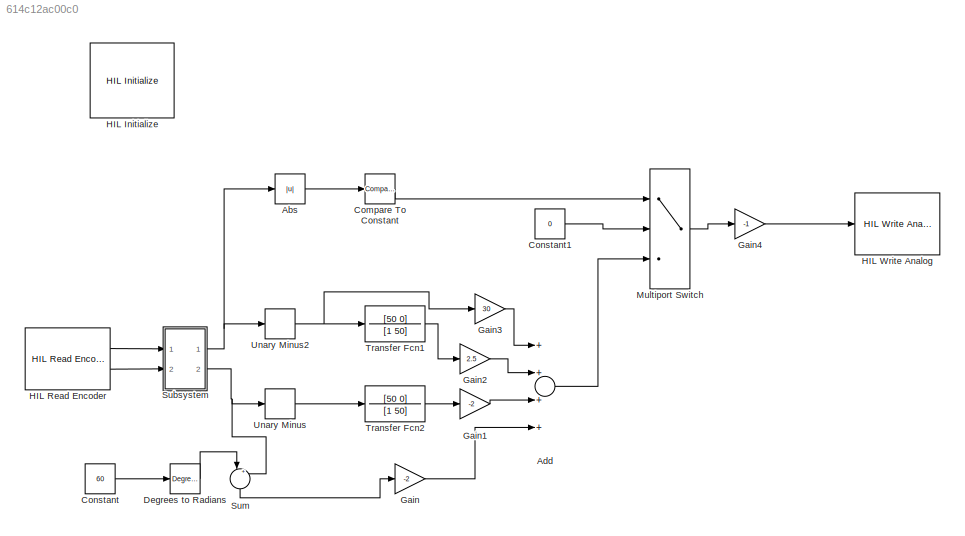
MODEL slx_614c12ac00c0
KIND model
BLOCK [Abs] Abs
  SaturateOnIntegerOverflow = off
BLOCK [Sum] Add
  InputSameDT = off
  Inputs = ++++
  OutDataTypeStr = Inherit: Inherit via internal rule
  Ports = [4, 1]
  SaturateOnIntegerOverflow = off
BLOCK [Reference] Compare To Constant  REF=simulink/Logic and Bit
Operations/Compare
To Constant
  OutDataTypeStr = boolean
  Ports = [1, 1]
  SourceBlock = simulink/Logic and Bit\nOperations/Compare\nTo Constant
  SourceType = Compare To Constant
  ZeroCross = on
  const = 10*pi/180
  relop = <=
BLOCK [Constant] Constant
  Value = 60
BLOCK [Constant] Constant1
  Value = 0
BLOCK [Reference] Degrees to Radians  REF=simulink_extras/Transformations/Degrees to
Radians
  Ports = [1, 1]
  SourceBlock = simulink_extras/Transformations/Degrees to\nRadians
  SourceType = DegreesToRadians
BLOCK [Gain] Gain
  Gain = -2
  OutDataTypeStr = Inherit: Inherit via internal rule
  ParamDataTypeStr = Inherit: Inherit via internal rule
  SaturateOnIntegerOverflow = off
BLOCK [Gain] Gain1
  Gain = -2
  OutDataTypeStr = Inherit: Inherit via internal rule
  ParamDataTypeStr = Inherit: Inherit via internal rule
  SaturateOnIntegerOverflow = off
BLOCK [Gain] Gain2
  Gain = 2.5
  OutDataTypeStr = Inherit: Inherit via internal rule
  ParamDataTypeStr = Inherit: Inherit via internal rule
  SaturateOnIntegerOverflow = off
BLOCK [Gain] Gain3
  Gain = 30
  OutDataTypeStr = Inherit: Inherit via internal rule
  ParamDataTypeStr = Inherit: Inherit via internal rule
  SaturateOnIntegerOverflow = off
BLOCK [Gain] Gain4
  Gain = -1
  OutDataTypeStr = Inherit: Inherit via internal rule
  ParamDataTypeStr = Inherit: Inherit via internal rule
  SaturateOnIntegerOverflow = off
BLOCK [Reference] HIL Initialize  REF=quarc_library/Data Acquisition/Generic/Configuration/HIL Initialize
  AttributesFormatString = %<object_name> (%<board_type>-%<board_number>)
  Ports = []
  Priority = -99
  SourceBlock = quarc_library/Data Acquisition/Generic/Configuration/HIL Initialize
  SourceType = HIL Initialize
  UserDataPersistent = on
  active = off
  analog_input_channels = []
  analog_input_maximums = []
  analog_input_minimums = []
  analog_output_channels = [0:1]
  analog_output_maximums = 10
  analog_output_minimums = -10
  board_number = 0
  board_options = d0=pwm;d1=pwm;led=auto;update_rate=normal;decimation=1
  board_type = qube_servo_usb
  clock_modes = []
  digital_input_channels = []
  digital_output_channels = []
  digital_output_configuration = []
  encoder_channels = [0:1]
  encoder_filter_frequency = []
  exclusive = off
  final_analog_outputs = [0]
  final_digital_outputs = []
  final_other_outputs = []
  final_pwm_outputs = []
  hardware_clocks = [0]
  initial_analog_outputs = [0]
  initial_clock_frequencies = []
  initial_digital_outputs = []
  initial_encoder_counts = [0]
  initial_other_outputs = []
  initial_pwm_outputs = []
  object_name = HIL-1
  other_output_channels = []
  pwm_alignment = []
  pwm_channels = []
  pwm_configuration = []
  pwm_frequency = []
  pwm_leading_deadband = []
  pwm_modes = []
  pwm_polarity = []
  pwm_trailing_deadband = []
  quadrature = [4]
  set_analog_input_params_at_start = off
  set_analog_input_params_at_switch_in = off
  set_analog_output_params_at_start = on
  set_analog_output_params_at_switch_in = off
  set_analog_outputs_at_start = on
  set_analog_outputs_at_switch_in = off
  set_analog_outputs_at_switch_out = off
  set_analog_outputs_at_terminate = on
  set_analog_outputs_on_watchdog = off
  set_clock_frequencies_at_start = off
  set_clock_frequencies_at_switch_in = off
  set_clock_params_at_start = off
  set_clock_params_at_switch_in = off
  set_digital_output_params_at_start = off
  set_digital_output_params_at_switch_in = off
  set_digital_outputs_at_start = off
  set_digital_outputs_at_switch_in = off
  set_digital_outputs_at_switch_out = off
  set_digital_outputs_at_terminate = off
  set_digital_outputs_on_watchdog = off
  set_encoder_counts_at_start = on
  set_encoder_counts_at_switch_in = off
  set_encoder_params_at_start = on
  set_encoder_params_at_switch_in = off
  set_other_outputs_at_start = off
  set_other_outputs_at_switch_in = off
  set_other_outputs_at_switch_out = off
  set_other_outputs_at_terminate = off
  set_other_outputs_on_watchdog = off
  set_pwm_outputs_at_start = off
  set_pwm_outputs_at_switch_in = off
  set_pwm_outputs_at_switch_out = off
  set_pwm_outputs_at_terminate = off
  set_pwm_outputs_on_watchdog = off
  set_pwm_params_at_start = off
  set_pwm_params_at_switch_in = off
  watchdog_analog_outputs = 0
  watchdog_digital_outputs = []
  watchdog_other_outputs = []
  watchdog_pwm_outputs = []
BLOCK [Reference] HIL Read Encoder  REF=quarc_library/Data Acquisition/Generic/Immediate I//O/HIL Read Encoder
  AttributesFormatString = (%<object_name>)
  Ports = [0, 2]
  SourceBlock = quarc_library/Data Acquisition/Generic/Immediate I//O/HIL Read Encoder
  SourceType = HIL Read Encoder
  UserDataPersistent = on
  active = on
  channels = [1 0]
  data_type = double
  data_type_mode = Inherit via back propagation
  object_name = HIL-1
  sample_time = qc_get_step_size
  vector_output = off
BLOCK [Reference] HIL Write Analog  REF=quarc_library/Data Acquisition/Generic/Immediate I//O/HIL Write Analog
  AttributesFormatString = (%<object_name>)
  Ports = [1]
  SourceBlock = quarc_library/Data Acquisition/Generic/Immediate I//O/HIL Write Analog
  SourceType = HIL Write Analog
  UserDataPersistent = on
  active = off
  channels = 0
  object_name = HIL-1
  sample_time = -1
  vector_input = off
BLOCK [MultiPortSwitch] Multiport Switch
  DataPortOrder = Zero-based contiguous
  InputSameDT = off
  Inputs = 2
  Ports = [3, 1]
  SaturateOnIntegerOverflow = off
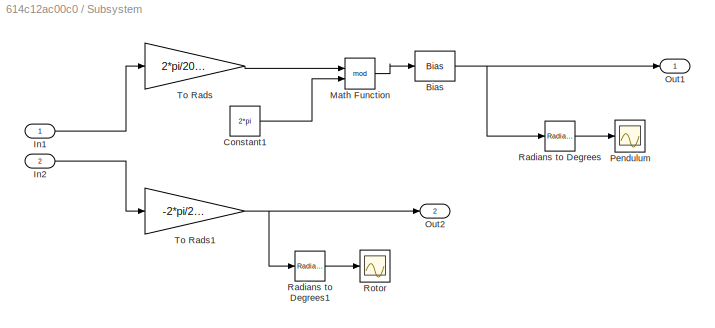
BLOCK [SubSystem] Subsystem
  Ports = [2, 2]
  RequestExecContextInheritance = off
BLOCK [Bias] Subsystem/Bias
  Bias = -pi
  SaturateOnIntegerOverflow = off
BLOCK [Constant] Subsystem/Constant1
  Value = 2*pi
BLOCK [Inport] Subsystem/In1
  IconDisplay = Port number
BLOCK [Inport] Subsystem/In2
  IconDisplay = Port number
  Port = 2
BLOCK [Math] Subsystem/Math Function
  Operator = mod
  Ports = [2, 1]
BLOCK [Outport] Subsystem/Out1
  IconDisplay = Port number
BLOCK [Outport] Subsystem/Out2
  IconDisplay = Port number
  Port = 2
BLOCK [Scope] Subsystem/Pendulum
  Floating = off
  NumInputPorts = 1
  Ports = [1]
  ShowLegends = off
  YMax = 200
  YMin = -200
BLOCK [Reference] Subsystem/Radians to Degrees  REF=simulink_extras/Transformations/Radians
to Degrees
  Ports = [1, 1]
  SourceBlock = simulink_extras/Transformations/Radians\nto Degrees
  SourceType = RadiansToDegrees
BLOCK [Reference] Subsystem/Radians to Degrees1  REF=simulink_extras/Transformations/Radians
to Degrees
  Ports = [1, 1]
  SourceBlock = simulink_extras/Transformations/Radians\nto Degrees
  SourceType = RadiansToDegrees
BLOCK [Scope] Subsystem/Rotor
  Floating = off
  NumInputPorts = 1
  Ports = [1]
  SaveName = ScopeData1
  ShowLegends = off
  YMax = 150
  YMin = -60
BLOCK [Gain] Subsystem/To Rads
  Gain = 2*pi/2048
  OutDataTypeStr = Inherit: Inherit via internal rule
  ParamDataTypeStr = Inherit: Inherit via internal rule
  SaturateOnIntegerOverflow = off
BLOCK [Gain] Subsystem/To Rads1
  Gain = -2*pi/2048
  OutDataTypeStr = Inherit: Inherit via internal rule
  ParamDataTypeStr = Inherit: Inherit via internal rule
  SaturateOnIntegerOverflow = off
BLOCK [Sum] Sum
  IconShape = round
  InputSameDT = off
  Inputs = |+-
  OutDataTypeStr = Inherit: Inherit via internal rule
  Ports = [2, 1]
  SaturateOnIntegerOverflow = off
BLOCK [TransferFcn] Transfer Fcn1
  Denominator = [1 50]
  Numerator = [50 0]
BLOCK [TransferFcn] Transfer Fcn2
  Denominator = [1 50]
  Numerator = [50 0]
BLOCK [UnaryMinus] Unary Minus
BLOCK [UnaryMinus] Unary Minus2
LINE Abs:1 -> Compare To Constant:1
LINE Add:1 -> Multiport Switch:3
LINE Compare To Constant:1 -> Multiport Switch:1
LINE Constant1:1 -> Multiport Switch:2
LINE Constant:1 -> Degrees to Radians:1
LINE Degrees to Radians:1 -> Sum:1
LINE Gain1:1 -> Add:3
LINE Gain2:1 -> Add:2
LINE Gain3:1 -> Add:1
LINE Gain4:1 -> HIL Write Analog:1
LINE Gain:1 -> Add:4
LINE HIL Read Encoder:1 -> Subsystem:1
LINE HIL Read Encoder:2 -> Subsystem:2
LINE Multiport Switch:1 -> Gain4:1
NET Subsystem/Bias:1 -> Subsystem/Out1:1, Subsystem/Radians to Degrees:1
LINE Subsystem/Constant1:1 -> Subsystem/Math Function:2
LINE Subsystem/In1:1 -> Subsystem/To Rads:1
LINE Subsystem/In2:1 -> Subsystem/To Rads1:1
LINE Subsystem/Math Function:1 -> Subsystem/Bias:1
LINE Subsystem/Radians to Degrees1:1 -> Subsystem/Rotor:1
LINE Subsystem/Radians to Degrees:1 -> Subsystem/Pendulum:1
NET Subsystem/To Rads1:1 -> Subsystem/Out2:1, Subsystem/Radians to Degrees1:1
LINE Subsystem/To Rads:1 -> Subsystem/Math Function:1
NET Subsystem:1 -> Abs:1, Unary Minus2:1
NET Subsystem:2 -> Sum:2, Unary Minus:1
LINE Sum:1 -> Gain:1
LINE Transfer Fcn1:1 -> Gain2:1
LINE Transfer Fcn2:1 -> Gain1:1
NET Unary Minus2:1 -> Gain3:1, Transfer Fcn1:1
LINE Unary Minus:1 -> Transfer Fcn2:1
note: NET lines group one-source signal fan-out (src -> all destinations, sorted); 1:1 wires keep LINE
